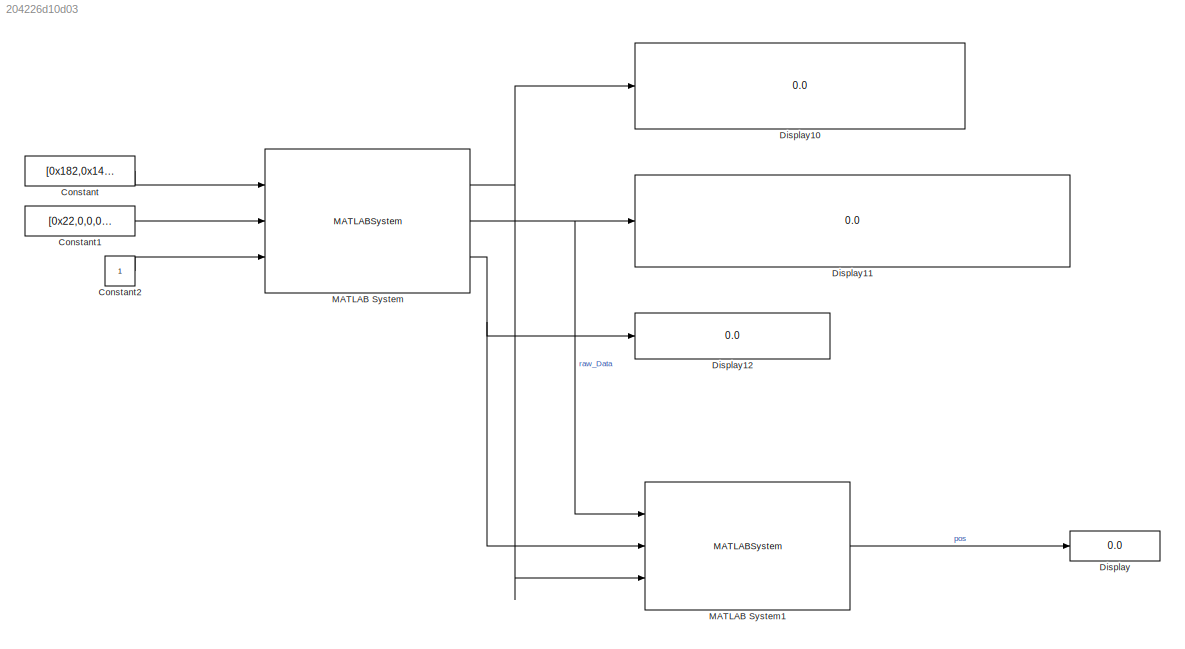
MODEL slx_204226d10d03
KIND model
CONFIG AbsTol = auto
CONFIG EnableMultiTasking = on
CONFIG FixedStep = 0.005
CONFIG MaxStep = auto
CONFIG MinStep = auto
CONFIG RelTol = 1e-3
CONFIG SampleTimeConstraint = Unconstrained
CONFIG SolverName = FixedStepAuto
CONFIG StartTime = 0.0
CONFIG StopTime = 300
BLOCK [Constant] Constant
  Value = [0x182,0x142]
BLOCK [Constant] Constant1
  Value = [0x22,0,0,0,0,0,0,0]
BLOCK [Constant] Constant2
BLOCK [Display] Display
  Decimation = 1
  Ports = [1]
BLOCK [Display] Display10
  Decimation = 1
  Format = hex (Stored Integer)
  Ports = [1]
BLOCK [Display] Display11
  Decimation = 1
  Format = hex (Stored Integer)
  Ports = [1]
BLOCK [Display] Display12
  Decimation = 1
  Format = hex (Stored Integer)
  Ports = [1]
BLOCK [MATLABSystem] MATLAB System
  MaskDisplay = disp('CAN_Driver');\nport_label('input',1,'canID_array');\nport_label('input',2,'send_RawData');\nport_label('input',3,'dev_Num');\nport_label('output',1,'recv_ID');\nport_label('output',2,'recv_rawData');\nport_label('output',3,'err');
  MaskType = canSendRecv
  Ports = [3, 3]
  System = canSendRecv
  canPort = can1
BLOCK [MATLABSystem] MATLAB System1
  MaskDisplay = disp('wireSensorDecoder');\nport_label('input',1,'rawData');\nport_label('input',2,'err');\nport_label('input',3,'recvID');\nport_label('output',1,'pos');
  MaskType = wireSensorDecoder
  Ports = [3, 1]
  SimulateUsing = Code generation
  System = wireSensorDecoder
LINE Constant1:1 -> MATLAB System:2
LINE Constant2:1 -> MATLAB System:3
LINE Constant:1 -> MATLAB System:1
LINE MATLAB System1:1 -> Display:1
NET MATLAB System:1 -> Display10:1, MATLAB System1:3
NET MATLAB System:2 -> Display11:1, MATLAB System1:1
NET MATLAB System:3 -> Display12:1, MATLAB System1:2
note: NET lines group one-source signal fan-out (src -> all destinations, sorted); 1:1 wires keep LINE
